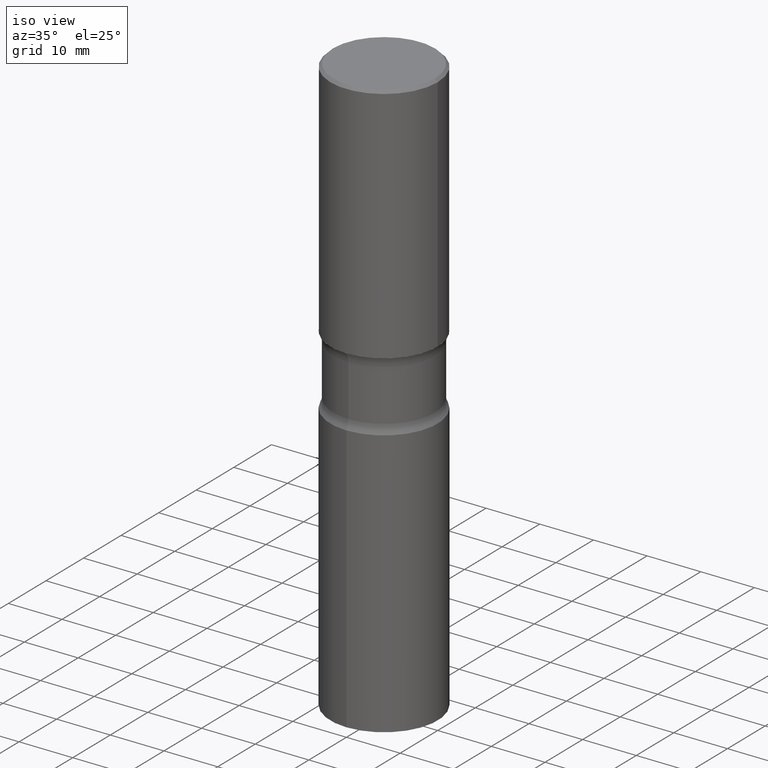
[diagram: clean part render]
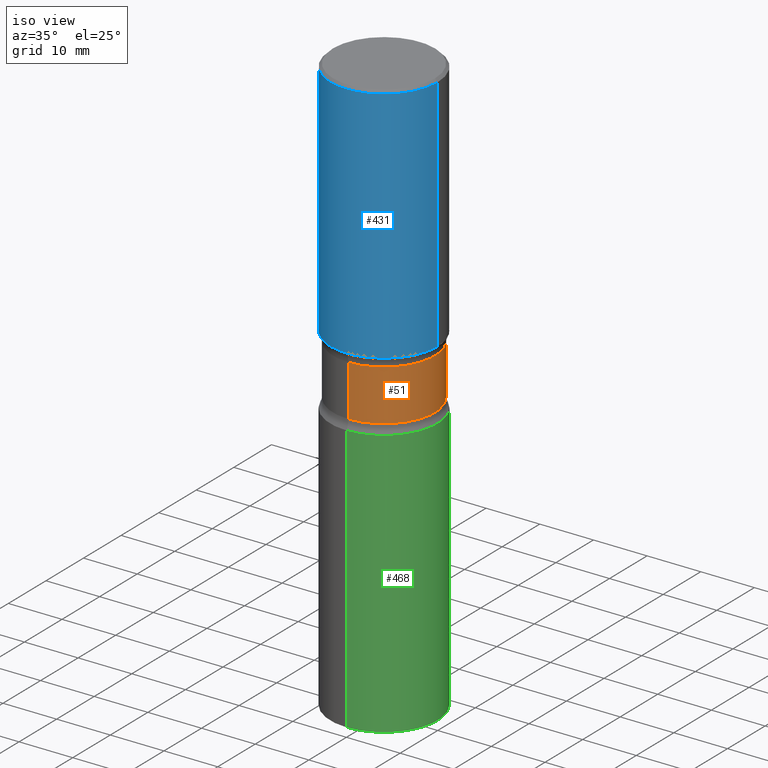
[diagram: same view with three faces highlighted in distinct colors, each labeled with its STEP entity id]
A machine part, iso view with three faces highlighted in distinct colors.
Their STEP definitions:

[orange] entity #51 — the highlighted cylindrical surface (partial cylindrical patch) has radius 9.4869 mm, axis along (0, -0, -1).
#17 = DIRECTION ( 'NONE',  ( 2.422342619709238593E-29, -3.524599354137422645E-15, -1.000000000000000000 ) ) ;
#38 = DIRECTION ( 'NONE',  ( 2.422342619709238593E-29, -3.524599354137423040E-15, -1.000000000000000000 ) ) ;
#46 = EDGE_LOOP ( 'NONE', ( #426, #471, #162, #482 ) ) ;
#51 = ADVANCED_FACE ( 'NONE', ( #493 ), #489, .T. ) ;
#71 = EDGE_CURVE ( 'NONE', #276, #419, #181, .T. ) ;
#97 = CARTESIAN_POINT ( 'NONE',  ( 4.510275735406058081E-29, -6.407951657325135987E-15, -1.839831930840098329 ) ) ;
#98 = LINE ( 'NONE', #207, #405 ) ;
#99 = CARTESIAN_POINT ( 'NONE',  ( 1.035337325523382990E-28, -1.490987767595703701E-14, -4.251999999999999780 ) ) ;
#100 = CIRCLE ( 'NONE', #391, 0.3735000000000001097 ) ;
#103 = CARTESIAN_POINT ( 'NONE',  ( -2.631687031945114564E-15, -0.3735000000000064380, -1.839831930840096996 ) ) ;
#104 = DIRECTION ( 'NONE',  ( 6.982962677686265922E-15, 1.000000000000000000, -2.925673888797068529E-15 ) ) ;
#114 = AXIS2_PLACEMENT_3D ( 'NONE', #99, #247, #104 ) ;
#124 = CARTESIAN_POINT ( 'NONE',  ( 5.419952928499140621E-29, -7.731566087902375701E-15, -2.215368069159901143 ) ) ;
#129 = VECTOR ( 'NONE', #38, 39.37007874015748143 ) ;
#162 = ORIENTED_EDGE ( 'NONE', *, *, #319, .F. ) ;
#167 = DIRECTION ( 'NONE',  ( 6.982962677686265922E-15, 1.000000000000000000, -3.657092360996335267E-15 ) ) ;
#181 = CIRCLE ( 'NONE', #480, 0.3734999999999999987 ) ;
#207 = CARTESIAN_POINT ( 'NONE',  ( -2.562396002167563676E-15, -0.3735000000000149312, -4.251999999999998892 ) ) ;
#214 = DIRECTION ( 'NONE',  ( 6.982962677686265922E-15, 1.000000000000000000, -3.657092360996336056E-15 ) ) ;
#232 = CARTESIAN_POINT ( 'NONE',  ( 2.608136560115865171E-15, 0.3734999999999935594, -1.839831930840099661 ) ) ;
#247 = DIRECTION ( 'NONE',  ( 2.422342619709238593E-29, -3.524599354137422645E-15, -1.000000000000000000 ) ) ;
#252 = EDGE_CURVE ( 'NONE', #276, #476, #261, .T. ) ;
#259 = CARTESIAN_POINT ( 'NONE',  ( 2.608136560115875426E-15, 0.3734999999999923936, -2.215368069159902475 ) ) ;
#261 = LINE ( 'NONE', #395, #129 ) ;
#276 = VERTEX_POINT ( 'NONE', #232 ) ;
#319 = EDGE_CURVE ( 'NONE', #476, #375, #100, .T. ) ;
#331 = DIRECTION ( 'NONE',  ( 2.422342619709238593E-29, -3.524599354137423040E-15, -1.000000000000000000 ) ) ;
#375 = VERTEX_POINT ( 'NONE', #411 ) ;
#391 = AXIS2_PLACEMENT_3D ( 'NONE', #124, #436, #167 ) ;
#395 = CARTESIAN_POINT ( 'NONE',  ( 2.608136560115923941E-15, 0.3734999999999851772, -4.252000000000000668 ) ) ;
#401 = EDGE_CURVE ( 'NONE', #419, #375, #98, .T. ) ;
#405 = VECTOR ( 'NONE', #331, 39.37007874015748143 ) ;
#411 = CARTESIAN_POINT ( 'NONE',  ( -2.631687031945105492E-15, -0.3735000000000078257, -2.215368069159899811 ) ) ;
#419 = VERTEX_POINT ( 'NONE', #103 ) ;
#426 = ORIENTED_EDGE ( 'NONE', *, *, #71, .T. ) ;
#436 = DIRECTION ( 'NONE',  ( 2.422342619709238593E-29, -3.524599354137422645E-15, -1.000000000000000000 ) ) ;
#471 = ORIENTED_EDGE ( 'NONE', *, *, #401, .T. ) ;
#476 = VERTEX_POINT ( 'NONE', #259 ) ;
#480 = AXIS2_PLACEMENT_3D ( 'NONE', #97, #17, #214 ) ;
#482 = ORIENTED_EDGE ( 'NONE', *, *, #252, .F. ) ;
#489 = CYLINDRICAL_SURFACE ( 'NONE', #114, 0.3735000000000000542 ) ;
#493 = FACE_OUTER_BOUND ( 'NONE', #46, .T. ) ;

[blue] entity #431 — the highlighted cylindrical surface (partial cylindrical patch) has radius 10 mm, axis along (-0, 0, 1).
#29 = DIRECTION ( 'NONE',  ( -2.445468806185136597E-29, 3.491481338843145583E-15, 1.000000000000000000 ) ) ;
#31 = CARTESIAN_POINT ( 'NONE',  ( 0.000000000000000000, 0.000000000000000000, 0.000000000000000000 ) ) ;
#35 = EDGE_LOOP ( 'NONE', ( #260, #374, #202, #408 ) ) ;
#36 = FACE_OUTER_BOUND ( 'NONE', #35, .T. ) ;
#40 = VERTEX_POINT ( 'NONE', #453 ) ;
#52 = AXIS2_PLACEMENT_3D ( 'NONE', #414, #174, #486 ) ;
#62 = CARTESIAN_POINT ( 'NONE',  ( -0.3936999999999999389, 2.797406750687513998E-15, -1.936584745033356455E-29 ) ) ;
#75 = CARTESIAN_POINT ( 'NONE',  ( 0.3936999999999999389, -2.749192406205082822E-15, 1.919750796630859611E-29 ) ) ;
#82 = VERTEX_POINT ( 'NONE', #417 ) ;
#107 = VECTOR ( 'NONE', #466, 39.37007874015748143 ) ;
#115 = VECTOR ( 'NONE', #446, 39.37007874015748143 ) ;
#133 = DIRECTION ( 'NONE',  ( -2.445468806185136597E-29, 3.491481338843145583E-15, 1.000000000000000000 ) ) ;
#169 = VERTEX_POINT ( 'NONE', #209 ) ;
#174 = DIRECTION ( 'NONE',  ( -2.445468806185136597E-29, 3.491481338843145583E-15, 1.000000000000000000 ) ) ;
#202 = ORIENTED_EDGE ( 'NONE', *, *, #257, .T. ) ;
#209 = CARTESIAN_POINT ( 'NONE',  ( 0.3937000000000000499, -8.935049894233482720E-15, -1.771699999999999608 ) ) ;
#218 = LINE ( 'NONE', #75, #107 ) ;
#228 = EDGE_CURVE ( 'NONE', #40, #169, #439, .T. ) ;
#237 = VERTEX_POINT ( 'NONE', #445 ) ;
#257 = EDGE_CURVE ( 'NONE', #169, #82, #218, .T. ) ;
#260 = ORIENTED_EDGE ( 'NONE', *, *, #400, .F. ) ;
#267 = CIRCLE ( 'NONE', #52, 0.3936999999999998834 ) ;
#293 = DIRECTION ( 'NONE',  ( 1.000000000000000000, -6.982962677686267499E-15, 0.000000000000000000 ) ) ;
#306 = CYLINDRICAL_SURFACE ( 'NONE', #457, 0.3936999999999999389 ) ;
#335 = LINE ( 'NONE', #62, #115 ) ;
#374 = ORIENTED_EDGE ( 'NONE', *, *, #228, .T. ) ;
#385 = CARTESIAN_POINT ( 'NONE',  ( 4.332637083918205306E-29, -6.185857488028398715E-15, -1.771699999999999608 ) ) ;
#388 = EDGE_CURVE ( 'NONE', #237, #82, #267, .T. ) ;
#400 = EDGE_CURVE ( 'NONE', #40, #237, #335, .T. ) ;
#408 = ORIENTED_EDGE ( 'NONE', *, *, #388, .F. ) ;
#414 = CARTESIAN_POINT ( 'NONE',  ( 4.890937612370294178E-31, -6.982962677686321191E-17, -0.02000000000000008715 ) ) ;
#417 = CARTESIAN_POINT ( 'NONE',  ( 0.3936999999999998834, -2.770807688499514550E-15, -0.02000000000000008715 ) ) ;
#431 = ADVANCED_FACE ( 'NONE', ( #36 ), #306, .T. ) ;
#439 = CIRCLE ( 'NONE', #499, 0.3937000000000000499 ) ;
#445 = CARTESIAN_POINT ( 'NONE',  ( -0.3936999999999998834, 2.679362779428219130E-15, -0.02000000000000008715 ) ) ;
#446 = DIRECTION ( 'NONE',  ( -2.445468806185136877E-29, 3.491481338843145188E-15, 1.000000000000000000 ) ) ;
#453 = CARTESIAN_POINT ( 'NONE',  ( -0.3937000000000000499, -3.304368067151161214E-16, -1.771699999999999608 ) ) ;
#457 = AXIS2_PLACEMENT_3D ( 'NONE', #31, #29, #463 ) ;
#463 = DIRECTION ( 'NONE',  ( 1.000000000000000000, -6.982962677686266711E-15, 4.876176775795935793E-29 ) ) ;
#466 = DIRECTION ( 'NONE',  ( -2.445468806185136877E-29, 3.491481338843145188E-15, 1.000000000000000000 ) ) ;
#486 = DIRECTION ( 'NONE',  ( 1.000000000000000000, -6.982962677686266711E-15, 0.000000000000000000 ) ) ;
#499 = AXIS2_PLACEMENT_3D ( 'NONE', #385, #133, #293 ) ;

[green] entity #468 — the highlighted cylindrical surface (partial cylindrical patch) has radius 10 mm, axis along (-0, 0, 1).
#18 = EDGE_CURVE ( 'NONE', #273, #263, #285, .T. ) ;
#22 = CARTESIAN_POINT ( 'NONE',  ( -2.749192406205083217E-15, -0.3937000000000001054, 1.374407621938595715E-15 ) ) ;
#34 = DIRECTION ( 'NONE',  ( -2.445803288082414641E-29, 3.491002341728715803E-15, 1.000000000000000000 ) ) ;
#54 = ORIENTED_EDGE ( 'NONE', *, *, #187, .F. ) ;
#67 = DIRECTION ( 'NONE',  ( -2.445803288082414641E-29, 3.491002341728715803E-15, 1.000000000000000000 ) ) ;
#108 = CYLINDRICAL_SURFACE ( 'NONE', #434, 0.3937000000000001054 ) ;
#128 = VERTEX_POINT ( 'NONE', #300 ) ;
#173 = VECTOR ( 'NONE', #494, 39.37007874015748143 ) ;
#176 = CARTESIAN_POINT ( 'NONE',  ( 1.039955558092642645E-28, -1.484374195703049851E-14, -4.251999999999999780 ) ) ;
#187 = EDGE_CURVE ( 'NONE', #273, #323, #302, .T. ) ;
#194 = DIRECTION ( 'NONE',  ( -6.982962677686265133E-15, -1.000000000000000000, 3.469453890861395179E-15 ) ) ;
#195 = EDGE_LOOP ( 'NONE', ( #429, #344, #435, #54 ) ) ;
#239 = EDGE_CURVE ( 'NONE', #323, #128, #357, .T. ) ;
#262 = DIRECTION ( 'NONE',  ( -6.982962677686265133E-15, -1.000000000000000000, 3.491002341728715803E-15 ) ) ;
#263 = VERTEX_POINT ( 'NONE', #384 ) ;
#264 = LINE ( 'NONE', #307, #339 ) ;
#265 = EDGE_CURVE ( 'NONE', #263, #128, #264, .T. ) ;
#271 = DIRECTION ( 'NONE',  ( -2.445803288082414921E-29, 3.491002341728716197E-15, 1.000000000000000000 ) ) ;
#273 = VERTEX_POINT ( 'NONE', #506 ) ;
#277 = AXIS2_PLACEMENT_3D ( 'NONE', #430, #313, #194 ) ;
#285 = CIRCLE ( 'NONE', #297, 0.3937000000000001054 ) ;
#297 = AXIS2_PLACEMENT_3D ( 'NONE', #176, #67, #343 ) ;
#300 = CARTESIAN_POINT ( 'NONE',  ( 2.797406750687618916E-15, 0.3936999999999921118, -2.283500000000001418 ) ) ;
#302 = LINE ( 'NONE', #22, #173 ) ;
#307 = CARTESIAN_POINT ( 'NONE',  ( 2.797406750687514786E-15, 0.3937000000000001054, -1.374407621938595715E-15 ) ) ;
#313 = DIRECTION ( 'NONE',  ( -2.445803288082414641E-29, 3.491002341728715803E-15, 1.000000000000000000 ) ) ;
#323 = VERTEX_POINT ( 'NONE', #477 ) ;
#339 = VECTOR ( 'NONE', #271, 39.37007874015748143 ) ;
#343 = DIRECTION ( 'NONE',  ( -6.982962677686265133E-15, -1.000000000000000000, 4.163344669033674057E-15 ) ) ;
#344 = ORIENTED_EDGE ( 'NONE', *, *, #265, .T. ) ;
#354 = CARTESIAN_POINT ( 'NONE',  ( 0.000000000000000000, 0.000000000000000000, 0.000000000000000000 ) ) ;
#357 = CIRCLE ( 'NONE', #277, 0.3937000000000001054 ) ;
#384 = CARTESIAN_POINT ( 'NONE',  ( 2.797406750687594856E-15, 0.3936999999999852839, -4.252000000000001556 ) ) ;
#429 = ORIENTED_EDGE ( 'NONE', *, *, #18, .T. ) ;
#430 = CARTESIAN_POINT ( 'NONE',  ( 5.584991808336194421E-29, -7.971703847337524080E-15, -2.283500000000000085 ) ) ;
#434 = AXIS2_PLACEMENT_3D ( 'NONE', #354, #34, #262 ) ;
#435 = ORIENTED_EDGE ( 'NONE', *, *, #239, .F. ) ;
#459 = FACE_OUTER_BOUND ( 'NONE', #195, .T. ) ;
#468 = ADVANCED_FACE ( 'NONE', ( #459 ), #108, .T. ) ;
#477 = CARTESIAN_POINT ( 'NONE',  ( -2.749192406205027602E-15, -0.3937000000000080990, -2.283499999999998753 ) ) ;
#494 = DIRECTION ( 'NONE',  ( -2.445803288082414921E-29, 3.491002341728716197E-15, 1.000000000000000000 ) ) ;
#506 = CARTESIAN_POINT ( 'NONE',  ( -2.749192406204979481E-15, -0.3937000000000149269, -4.251999999999998003 ) ) ;